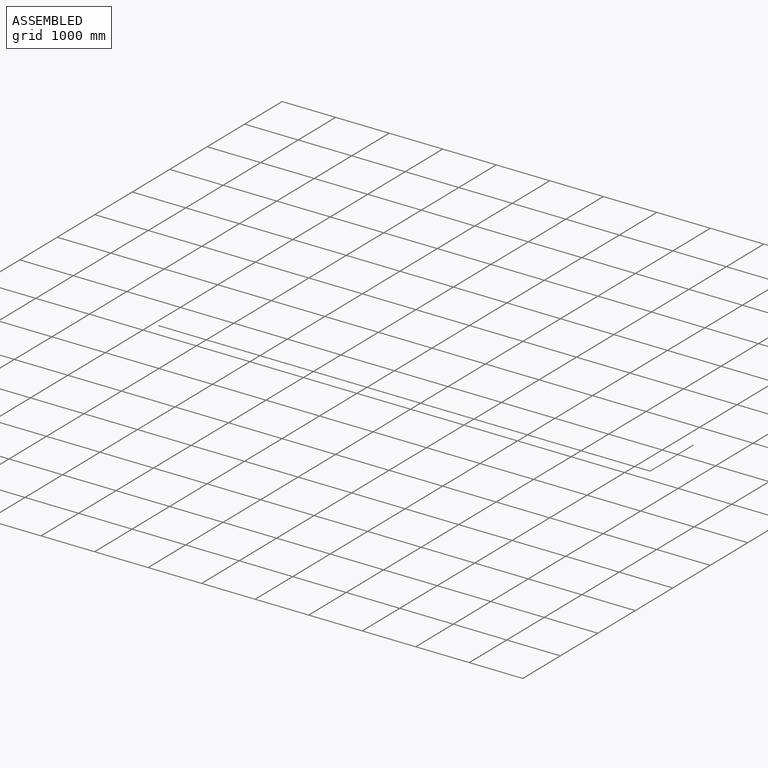
[diagram: assembled view]
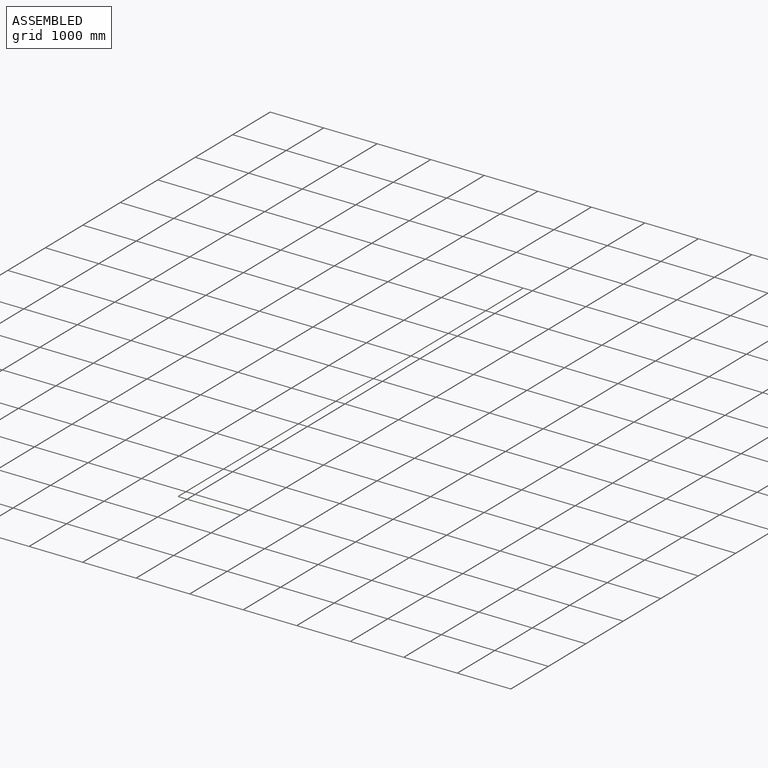
[diagram: assembled view, second angle]
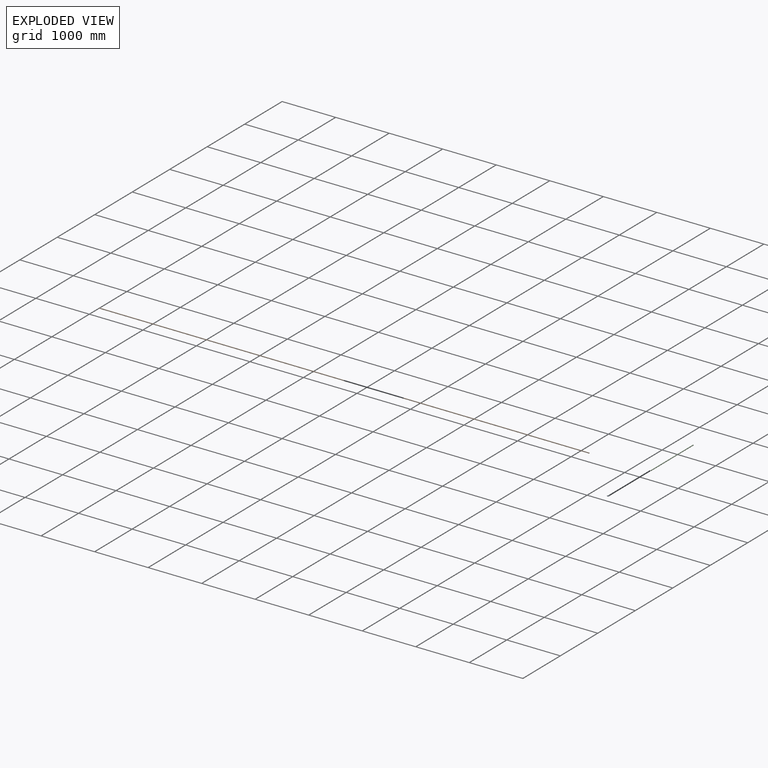
[diagram: exploded view]
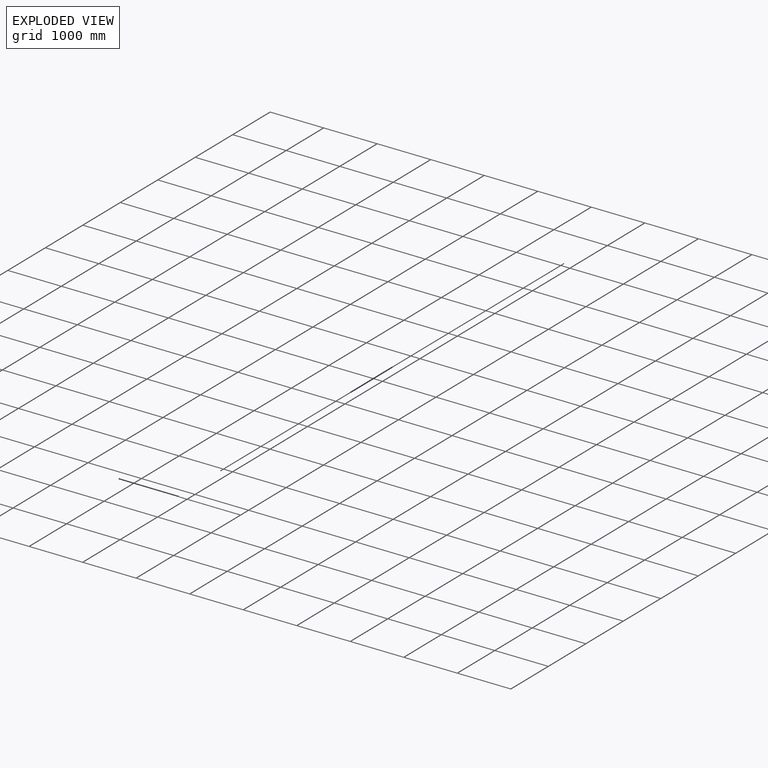
[diagram: exploded view, second angle]
ASSEMBLY  parts=3 mates=2
PART A: 5 faces, bbox 34.4x34.4x15 mm
  f0: plane 15x15mm, normal (0,-1,0), area 176.7mm2, adj f2
  f1: plane 15x15mm, normal (1,0,0), area 176.7mm2, adj f4
  f2: cylinder r=7.5mm len=15mm, axis (0,1,0), area 471.2mm2, adj f0,f3
  f3: torus R=15mm, axis (0,0,-1), area 1110.3mm2, adj f2,f4
  f4: cylinder r=7.5mm len=15mm, axis (1,0,0), area 471.2mm2, adj f1,f3
PART B: 3 faces, bbox 15x9160x15 mm
  f0: cylinder r=7.5mm len=9160mm, axis (0,1,0), area 431654.8mm2, adj f1,f2
  f1: plane 15x15mm, normal (0,-1,0), area 176.7mm2, adj f0
  f2: plane 15x15mm, normal (0,1,0), area 176.7mm2, adj f0
PART C: 3 faces, bbox 15x1125x15 mm
  f0: cylinder r=7.5mm len=1125mm, axis (0,1,0), area 53014.4mm2, adj f1,f2
  f1: plane 15x15mm, normal (0,-1,0), area 176.7mm2, adj f0
  f2: plane 15x15mm, normal (0,1,0), area 176.7mm2, adj f0
PLACE A rot(axis=(0.71,0.71,0),180deg) t=(11445,-6990,-25)mm
PLACE B rot(axis=(0,0,1),90deg) t=(2285,-6990,-25)mm
PLACE C t=(11470,-5840,-25)mm
MATE revolute A.f2 <-> B.f0  axis (-1,0,0) through (11445,-6990,-25)mm
MATE revolute C.f0 <-> A.f4  axis (0,-1,0) through (11470,-6965,-25)mm
